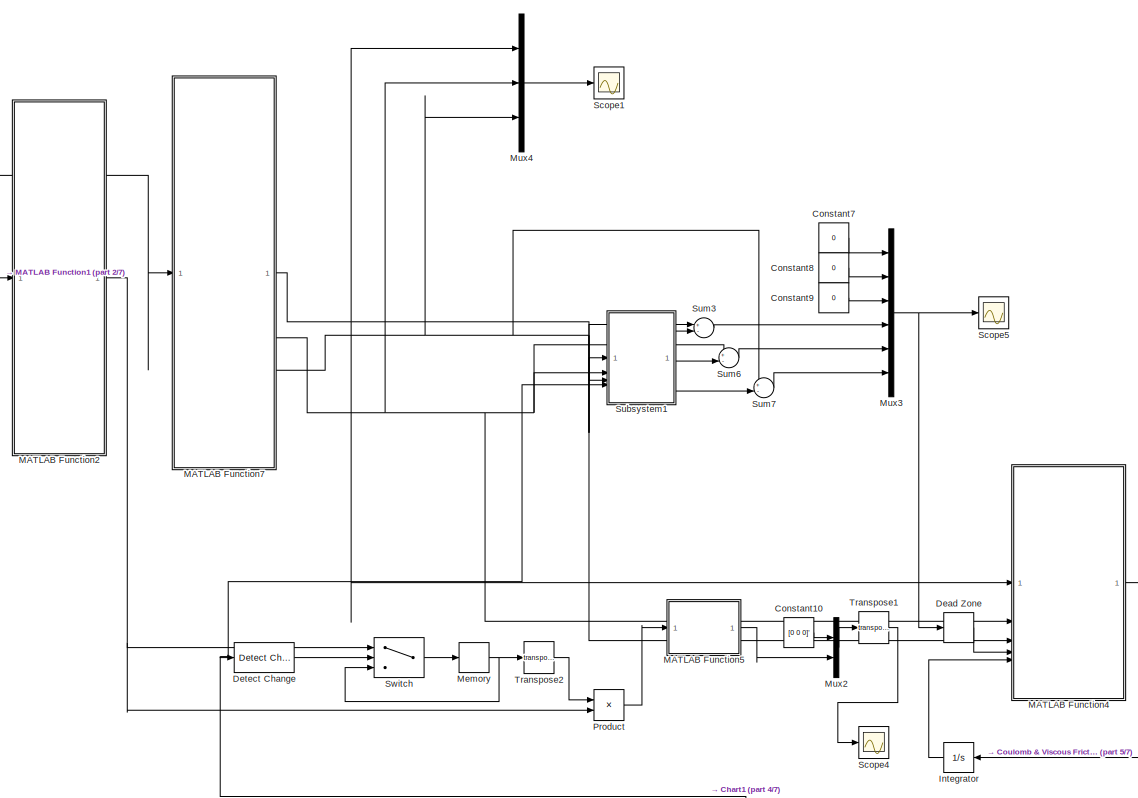
[diagram: root canvas - part 1/7, top right region]
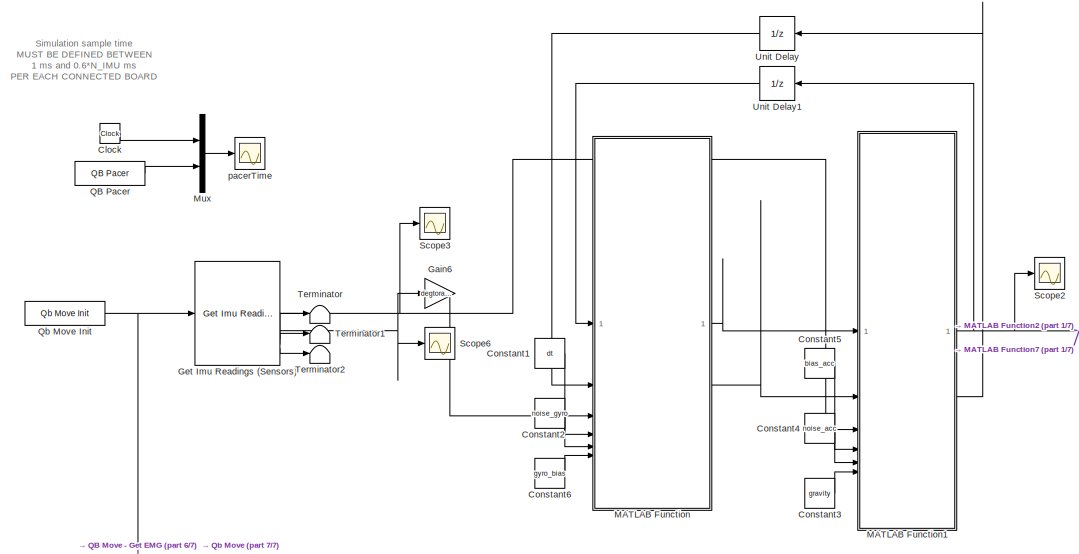
[diagram: root canvas - part 2/7, top center region]
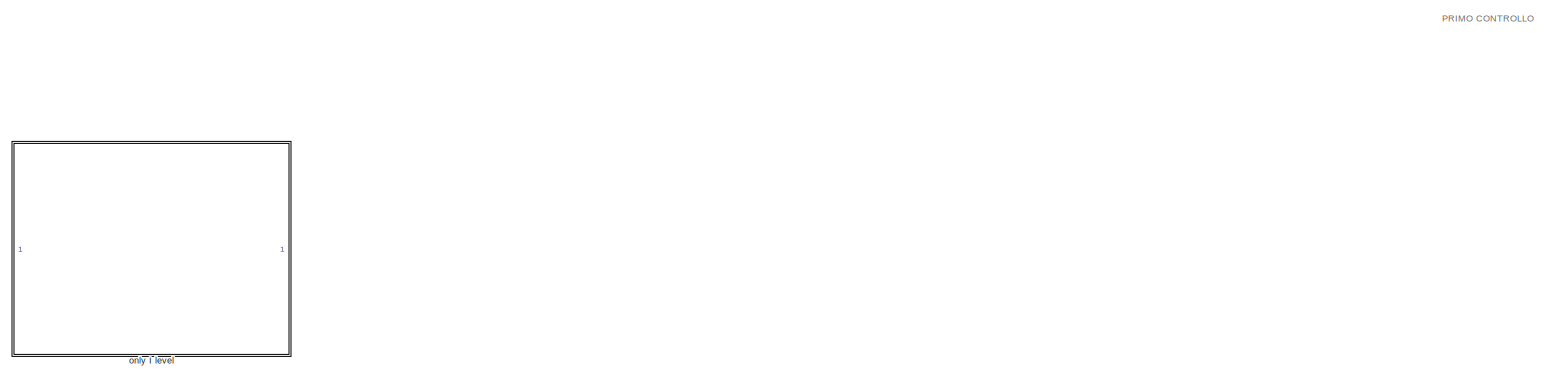
[diagram: root canvas - part 3/7, top left region]
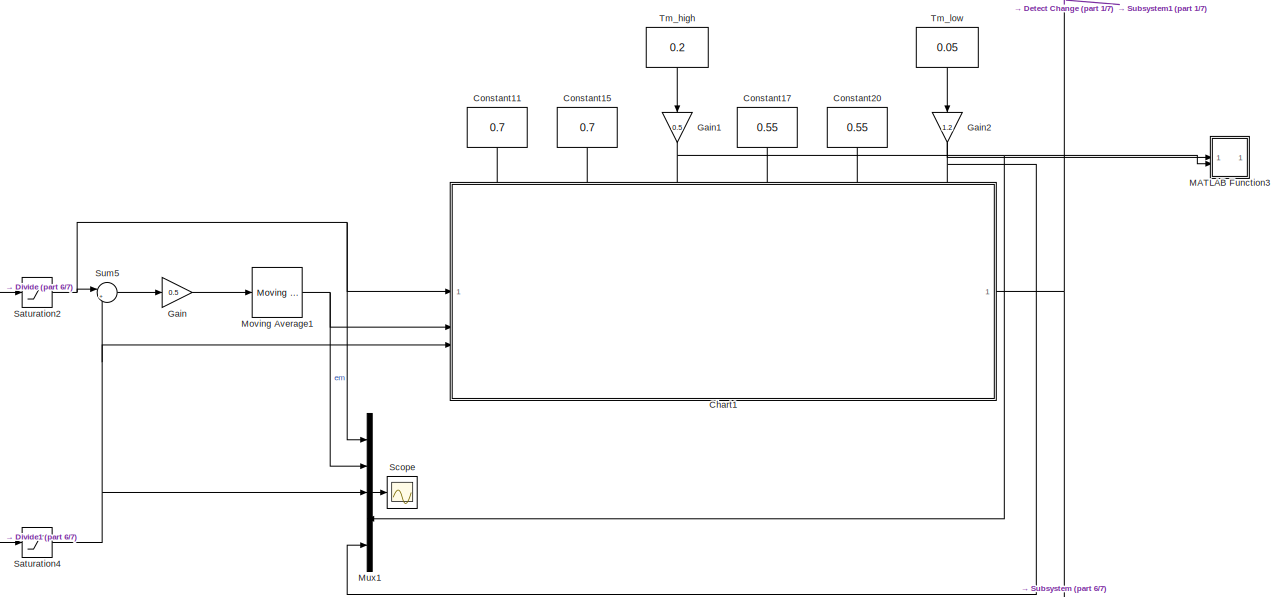
[diagram: root canvas - part 4/7, middle right region]
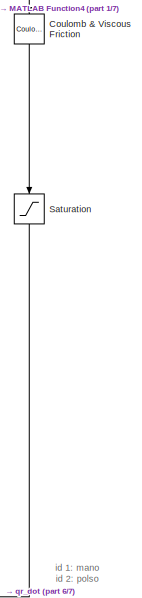
[diagram: root canvas - part 5/7, middle right region]
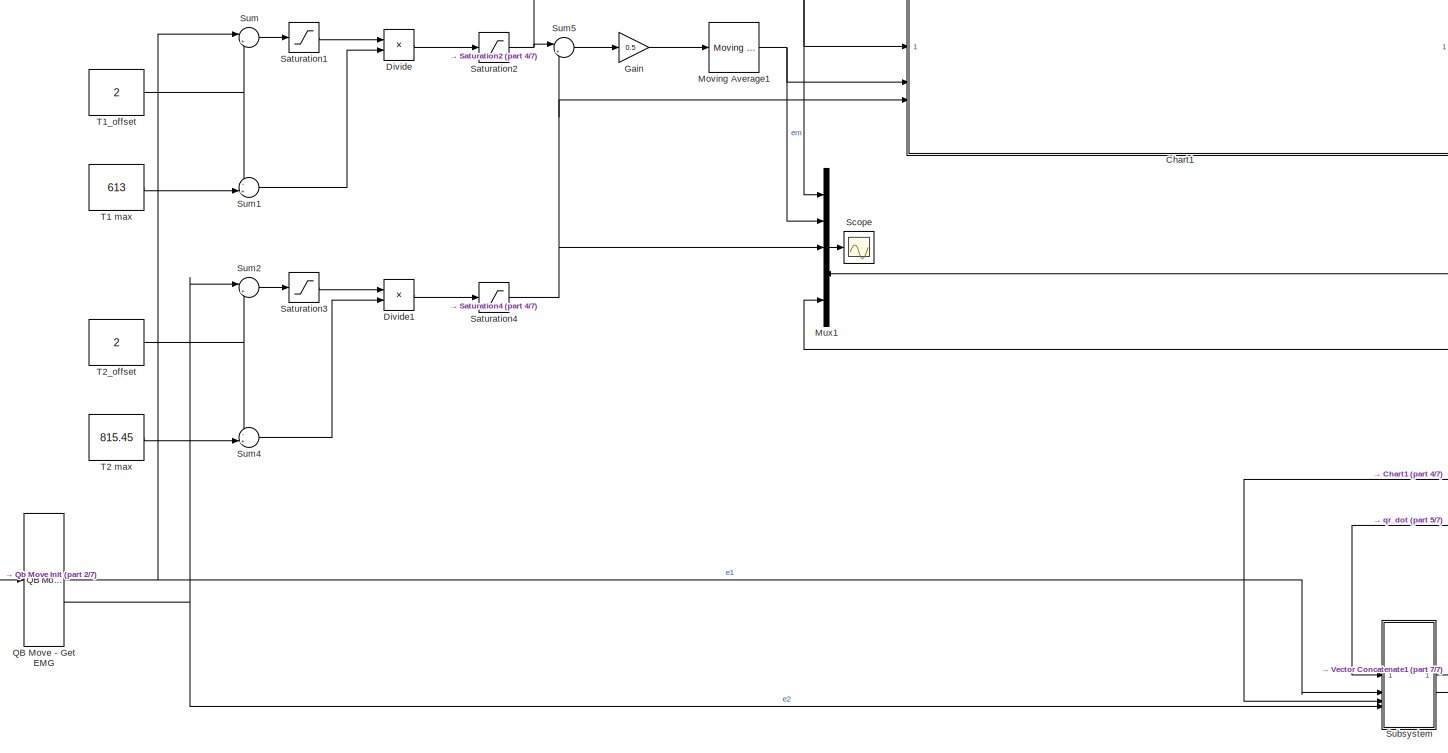
[diagram: root canvas - part 6/7, bottom right region]
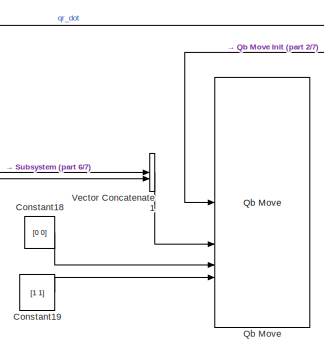
[diagram: root canvas - part 7/7, bottom right region]
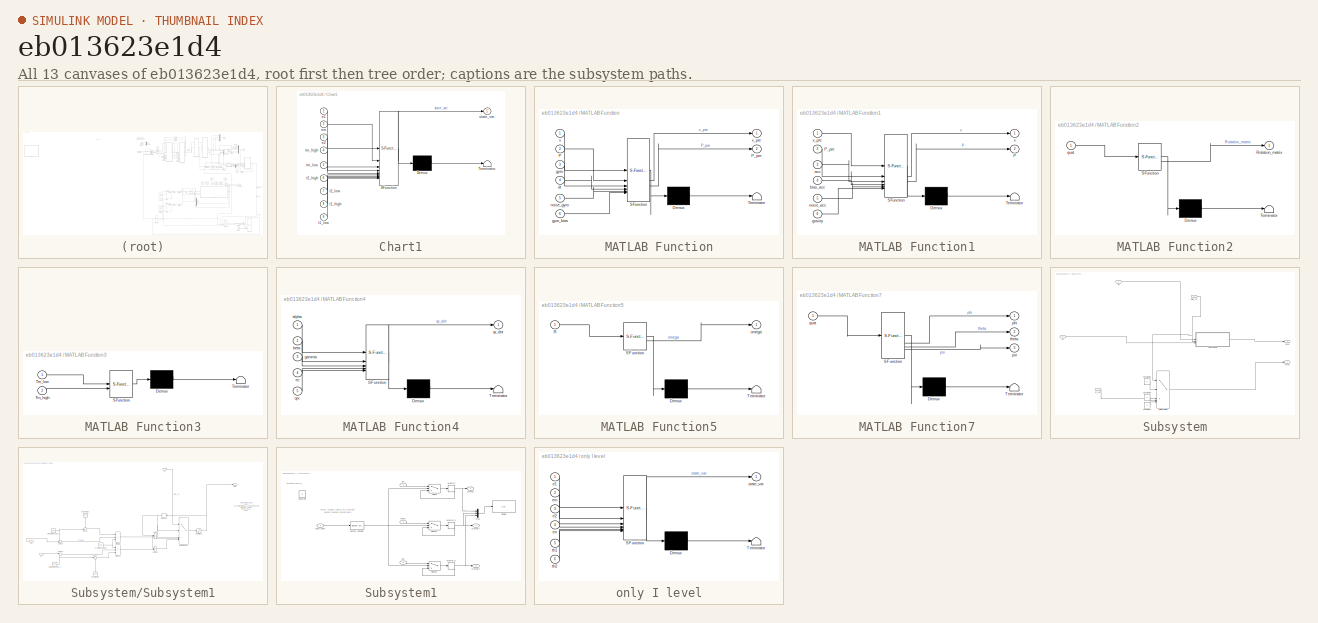
[diagram: thumbnail index - all 13 canvases of the model, root first then tree order]
MODEL slx_eb013623e1d4
KIND model
CONFIG AbsTol = auto
CONFIG EnableMultiTasking = off
CONFIG FixedStep = dt
CONFIG MaxStep = auto
CONFIG MinStep = auto
CONFIG RelTol = 1e-3
CONFIG SampleTimeConstraint = Unconstrained
CONFIG SolverName = ode1
CONFIG StartTime = 0.0
CONFIG StopTime = inf
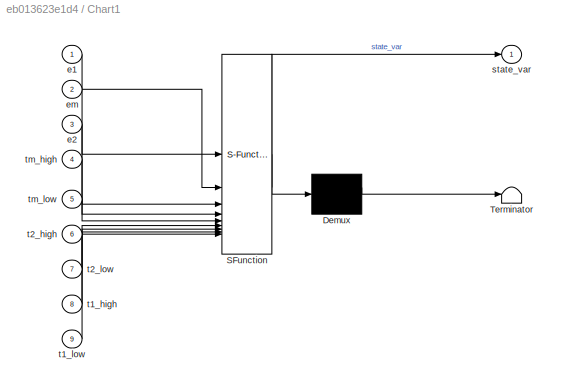
BLOCK [SubSystem] Chart1
  Commented = on
  ErrorFcn = Stateflow.Translate.translate
  PermitHierarchicalResolution = ExplicitOnly
  PortSchema = {"entries":[{"content":{"sides":[{"content":{"connectorIds":["In1","In2","In3"]},"type":"ConnectorPlacement.EquallySpacedRectSide","uuid":"4553bcbd-c641-47c7-8dbf-f79092e6ee81"},{"content":{"connectorIds":["Out1"],"side":"RIGHT"},"type":"ConnectorPlacement.EquallySpacedRectSide","uuid":"3da28b68-d93e-4f4c-9976-148e25354e99"},{"content":{"connectorIds":["In8","In6","In4","In9","In7","In5"],"side":"...<+287ch>
  SFBlockType = Chart
  TreatAsAtomicUnit = on
BLOCK [Demux] Chart1/ Demux 
  Outputs = 1
BLOCK [S-Function] Chart1/ SFunction 
  EnableBusSupport = on
  FunctionName = sf_sfun
  Parameters = dt
  PortCounts = [9 2]
  SFcnIsStateOwnerBlock = off
  SFunctionDeploymentMode = off
  Tag = Stateflow S-Function 4
BLOCK [Terminator] Chart1/ Terminator 
BLOCK [Inport] Chart1/e1
BLOCK [Inport] Chart1/e2
  Port = 3
BLOCK [Inport] Chart1/em
  Port = 2
BLOCK [Outport] Chart1/state_var
BLOCK [Inport] Chart1/t1_high
  Port = 8
BLOCK [Inport] Chart1/t1_low
  Port = 9
BLOCK [Inport] Chart1/t2_high
  Port = 6
BLOCK [Inport] Chart1/t2_low
  Port = 7
BLOCK [Inport] Chart1/tm_high
  Port = 4
BLOCK [Inport] Chart1/tm_low
  Port = 5
BLOCK [Clock] Clock
BLOCK [Constant] Constant1
  Value = dt
BLOCK [Constant] Constant10
  Value = [0 0 0]'
BLOCK [Constant] Constant11
  Commented = on
  NameLocation = left
  Value = 0.7
BLOCK [Constant] Constant15
  Commented = on
  NameLocation = left
  Value = 0.7
BLOCK [Constant] Constant17
  Commented = on
  NameLocation = left
  Value = 0.55
BLOCK [Constant] Constant18
  Commented = on
  Value = [0 0]
BLOCK [Constant] Constant19
  Commented = on
  Value = [1 1]
BLOCK [Constant] Constant2
  Value = noise_gyro
BLOCK [Constant] Constant20
  Commented = on
  NameLocation = left
  Value = 0.55
BLOCK [Constant] Constant3
  Value = gravity
BLOCK [Constant] Constant4
  Value = noise_acc
BLOCK [Constant] Constant5
  Value = bias_acc
BLOCK [Constant] Constant6
  Value = gyro_bias
BLOCK [Constant] Constant7
  Value = 0
BLOCK [Constant] Constant8
  Value = 0
BLOCK [Constant] Constant9
  Value = 0
BLOCK [Reference] Coulomb & Viscous Friction  REF=simulink/Discontinuities/Coulomb &
Viscous Friction
  Commented = on
  NameLocation = left
  SourceBlock = simulink/Discontinuities/Coulomb &\nViscous Friction
  SourceType = Coulombic and Viscous Friction
BLOCK [DeadZone] Dead Zone
  LowerValue = -0.15
  UpperValue = 0.15
BLOCK [Reference] Detect Change  REF=simulink/Logic and Bit
Operations/Detect
Change
  SourceBlock = simulink/Logic and Bit\nOperations/Detect\nChange
  SourceType = Detect Change
BLOCK [Product] Divide
  Commented = on
  Inputs = */
BLOCK [Product] Divide1
  Commented = on
  Inputs = */
BLOCK [Gain] Gain
  Commented = on
  Gain = 0.5
BLOCK [Gain] Gain1
  Commented = on
  Gain = 0.5
  NameLocation = left
BLOCK [Gain] Gain2
  Commented = on
  Gain = 1.2
  NameLocation = left
BLOCK [Gain] Gain6
  Gain = degtoradianti
BLOCK [Reference] Get Imu Readings (Sensors)  REF=CP_library/Get Imu Readings (Sensors)
  SourceBlock = CP_library/Get Imu Readings (Sensors)
  SourceProductName = Centro Piaggio Library
  SourceType = qb get imu reading
BLOCK [Integrator] Integrator
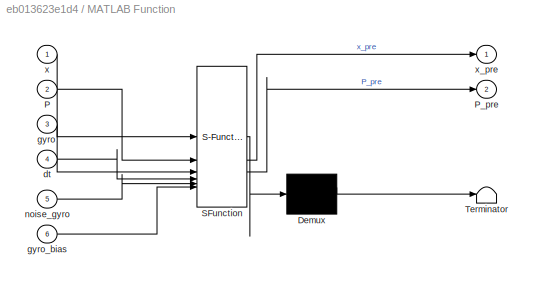
BLOCK [SubSystem] MATLAB Function
  ErrorFcn = Stateflow.Translate.translate
  PermitHierarchicalResolution = ExplicitOnly
  SFBlockType = MATLAB Function
  TreatAsAtomicUnit = on
BLOCK [Demux] MATLAB Function/ Demux 
  Outputs = 1
BLOCK [S-Function] MATLAB Function/ SFunction 
  EnableBusSupport = on
  FunctionName = sf_sfun
  PortCounts = [6 3]
  SFcnIsStateOwnerBlock = off
  SFunctionDeploymentMode = off
  Tag = Stateflow S-Function 2
BLOCK [Terminator] MATLAB Function/ Terminator 
BLOCK [Inport] MATLAB Function/P
  Port = 2
BLOCK [Outport] MATLAB Function/P_pre
  Port = 2
BLOCK [Inport] MATLAB Function/dt
  Port = 4
BLOCK [Inport] MATLAB Function/gyro
  Port = 3
BLOCK [Inport] MATLAB Function/gyro_bias
  Port = 6
BLOCK [Inport] MATLAB Function/noise_gyro
  Port = 5
BLOCK [Inport] MATLAB Function/x
BLOCK [Outport] MATLAB Function/x_pre
BLOCK [SubSystem] MATLAB Function1
  ErrorFcn = Stateflow.Translate.translate
  PermitHierarchicalResolution = ExplicitOnly
  SFBlockType = MATLAB Function
  TreatAsAtomicUnit = on
BLOCK [Demux] MATLAB Function1/ Demux 
  Outputs = 1
BLOCK [S-Function] MATLAB Function1/ SFunction 
  EnableBusSupport = on
  FunctionName = sf_sfun
  PortCounts = [6 3]
  SFcnIsStateOwnerBlock = off
  SFunctionDeploymentMode = off
  Tag = Stateflow S-Function 1
BLOCK [Terminator] MATLAB Function1/ Terminator 
BLOCK [Outport] MATLAB Function1/P
  Port = 2
BLOCK [Inport] MATLAB Function1/P_pre
  Port = 2
BLOCK [Inport] MATLAB Function1/acc
  Port = 3
BLOCK [Inport] MATLAB Function1/bias_acc
  Port = 4
BLOCK [Inport] MATLAB Function1/gravity
  Port = 6
BLOCK [Inport] MATLAB Function1/noise_acc
  Port = 5
BLOCK [Outport] MATLAB Function1/x
BLOCK [Inport] MATLAB Function1/x_pre
BLOCK [SubSystem] MATLAB Function2
  ErrorFcn = Stateflow.Translate.translate
  PermitHierarchicalResolution = ExplicitOnly
  SFBlockType = MATLAB Function
  TreatAsAtomicUnit = on
BLOCK [Demux] MATLAB Function2/ Demux 
  Outputs = 1
BLOCK [S-Function] MATLAB Function2/ SFunction 
  EnableBusSupport = on
  FunctionName = sf_sfun
  PortCounts = [1 2]
  SFcnIsStateOwnerBlock = off
  SFunctionDeploymentMode = off
  Tag = Stateflow S-Function 3
BLOCK [Terminator] MATLAB Function2/ Terminator 
BLOCK [Outport] MATLAB Function2/Rotation_matrix
BLOCK [Inport] MATLAB Function2/quat
BLOCK [SubSystem] MATLAB Function3
  Commented = on
  ErrorFcn = Stateflow.Translate.translate
  PermitHierarchicalResolution = ExplicitOnly
  SFBlockType = MATLAB Function
  TreatAsAtomicUnit = on
BLOCK [Demux] MATLAB Function3/ Demux 
  Outputs = 1
BLOCK [S-Function] MATLAB Function3/ SFunction 
  EnableBusSupport = on
  FunctionName = sf_sfun
  PortCounts = [2 1]
  SFcnIsStateOwnerBlock = off
  SFunctionDeploymentMode = off
  Tag = Stateflow S-Function 6
BLOCK [Terminator] MATLAB Function3/ Terminator 
BLOCK [Inport] MATLAB Function3/Tm_high
  Port = 2
BLOCK [Inport] MATLAB Function3/Tm_low
BLOCK [SubSystem] MATLAB Function4
  ErrorFcn = Stateflow.Translate.translate
  PermitHierarchicalResolution = ExplicitOnly
  SFBlockType = MATLAB Function
  TreatAsAtomicUnit = on
BLOCK [Demux] MATLAB Function4/ Demux 
  Outputs = 1
BLOCK [S-Function] MATLAB Function4/ SFunction 
  EnableBusSupport = on
  FunctionName = sf_sfun
  PortCounts = [5 2]
  SFcnIsStateOwnerBlock = off
  SFunctionDeploymentMode = off
  Tag = Stateflow S-Function 5
BLOCK [Terminator] MATLAB Function4/ Terminator 
BLOCK [Inport] MATLAB Function4/alpha
BLOCK [Inport] MATLAB Function4/beta
  Port = 2
BLOCK [Inport] MATLAB Function4/ec
  Port = 4
BLOCK [Inport] MATLAB Function4/gamma
  Port = 3
BLOCK [Outport] MATLAB Function4/qr_dot
BLOCK [Inport] MATLAB Function4/qrx
  Port = 5
BLOCK [SubSystem] MATLAB Function5
  ErrorFcn = Stateflow.Translate.translate
  PermitHierarchicalResolution = ExplicitOnly
  SFBlockType = MATLAB Function
  TreatAsAtomicUnit = on
BLOCK [Demux] MATLAB Function5/ Demux 
  Outputs = 1
BLOCK [S-Function] MATLAB Function5/ SFunction 
  EnableBusSupport = on
  FunctionName = sf_sfun
  PortCounts = [1 2]
  SFcnIsStateOwnerBlock = off
  SFunctionDeploymentMode = off
  Tag = Stateflow S-Function 9
BLOCK [Terminator] MATLAB Function5/ Terminator 
BLOCK [Inport] MATLAB Function5/R
BLOCK [Outport] MATLAB Function5/omega
BLOCK [SubSystem] MATLAB Function7
  ErrorFcn = Stateflow.Translate.translate
  PermitHierarchicalResolution = ExplicitOnly
  SFBlockType = MATLAB Function
  TreatAsAtomicUnit = on
BLOCK [Demux] MATLAB Function7/ Demux 
  Outputs = 1
BLOCK [S-Function] MATLAB Function7/ SFunction 
  EnableBusSupport = on
  FunctionName = sf_sfun
  PortCounts = [1 4]
  SFcnIsStateOwnerBlock = off
  SFunctionDeploymentMode = off
  Tag = Stateflow S-Function 15
BLOCK [Terminator] MATLAB Function7/ Terminator 
BLOCK [Outport] MATLAB Function7/phi
BLOCK [Outport] MATLAB Function7/psi
  Port = 3
BLOCK [Inport] MATLAB Function7/quat
BLOCK [Outport] MATLAB Function7/theta
  Port = 2
BLOCK [Memory] Memory
  InitialCondition = eye(3)
BLOCK [Reference] Moving Average1  REF=dspstat3/Moving
Average
  Commented = on
  SourceBlock = dspstat3/Moving\nAverage
  SourceType = dsp.simulink.MovingAverage
BLOCK [Mux] Mux
  DisplayOption = bar
  Inputs = 2
BLOCK [Mux] Mux1
  Commented = on
  DisplayOption = bar
  Inputs = 5
BLOCK [Mux] Mux2
  DisplayOption = bar
  Inputs = 2
BLOCK [Mux] Mux3
  DisplayOption = bar
  Inputs = 6
BLOCK [Mux] Mux4
  DisplayOption = bar
  Inputs = 3
BLOCK [Product] Product
  Multiplication = Matrix(*)
BLOCK [Reference] QB Move - Get EMG  REF=qbmove_library/QB Move - Get EMG
  Commented = on
  SourceBlock = qbmove_library/QB Move - Get EMG
  SourceProductName = Qb Move Library
  SourceType = qb move
BLOCK [Reference] QB Pacer  REF=QB_pacer_lib/QB Pacer
  SourceBlock = QB_pacer_lib/QB Pacer
  SourceProductName = QB Pacer
  SourceType = RealTime_Pacer
BLOCK [Reference] Qb Move  REF=qbmove_library/Qb Move
  Commented = on
  LibrarySourceBlock = qbmove_library/qbmove
  SourceBlock = qbmove_library/Qb Move
  SourceProductName = Qb Move Library
  SourceType = qb move
BLOCK [Reference] Qb Move Init  REF=qbmove_library/Qb Move Init
  NameLocation = top
  SourceBlock = qbmove_library/Qb Move Init
  SourceProductName = Qb Move Library
  SourceType = qb Init - ISS
BLOCK [Saturate] Saturation
  Commented = on
  LowerLimit = -100
  NameLocation = left
  UpperLimit = 100
BLOCK [Saturate] Saturation1
  Commented = on
  LowerLimit = 0
  UpperLimit = 1024
BLOCK [Saturate] Saturation2
  Commented = on
  LowerLimit = 0
  UpperLimit = 1
BLOCK [Saturate] Saturation3
  Commented = on
  LowerLimit = 0
  UpperLimit = 1024
BLOCK [Saturate] Saturation4
  Commented = on
  LowerLimit = 0
  UpperLimit = 1
BLOCK [Scope] Scope
  Commented = on
  Floating = off
  NumInputPorts = 1
  ScopeSpecificationString = Simulink.scopes.TimeScopeBlockCfg('CurrentConfiguration', extmgr.ConfigurationSet(extmgr.Configuration('Core','General UI',true),extmgr.Configuration('Core','Source UI',true),extmgr.Configuration('Sources','WiredSimulink',true,'DataLoggingVariableName','ScopeData2'),extmgr.Configuration('Visuals','Time Domain',true,'SerializedDisplays',{struct('MinYLimReal','-0.0125','MaxYLimReal','0.1125','YLabel...<+1428ch>
BLOCK [Scope] Scope1
  Floating = off
  NumInputPorts = 1
  ScopeSpecificationString = Simulink.scopes.TimeScopeBlockCfg('CurrentConfiguration', extmgr.ConfigurationSet(extmgr.Configuration('Core','General UI',true),extmgr.Configuration('Core','Source UI',true),extmgr.Configuration('Sources','WiredSimulink',true,'DataLoggingVariableName','ScopeData1'),extmgr.Configuration('Visuals','Time Domain',true,'SerializedDisplays',{struct('MinYLimReal','-0.70785','MaxYLimReal','0.47995','YLab...<+1522ch>
BLOCK [Scope] Scope2
  Floating = off
  NumInputPorts = 1
  ScopeSpecificationString = Simulink.scopes.TimeScopeBlockCfg('CurrentConfiguration', extmgr.ConfigurationSet(extmgr.Configuration('Core','General UI',true),extmgr.Configuration('Core','Source UI',true),extmgr.Configuration('Sources','WiredSimulink',true,'DataLoggingVariableName','ScopeData1'),extmgr.Configuration('Visuals','Time Domain',true,'SerializedDisplays',{struct('MinYLimReal','-0.58123','MaxYLimReal','1.17569','YLab...<+1475ch>
BLOCK [Scope] Scope3
  Floating = off
  NumInputPorts = 1
  ScopeSpecificationString = Simulink.scopes.TimeScopeBlockCfg('CurrentConfiguration', extmgr.ConfigurationSet(extmgr.Configuration('Core','General UI',true),extmgr.Configuration('Core','Source UI',true),extmgr.Configuration('Sources','WiredSimulink',true,'DataLoggingVariableName','ScopeData1'),extmgr.Configuration('Visuals','Time Domain',true,'SerializedDisplays',{struct('MinYLimReal','-15.75797','MaxYLimReal','23.50643','YL...<+1488ch>
BLOCK [Scope] Scope4
  Floating = off
  NumInputPorts = 1
  ScopeSpecificationString = Simulink.scopes.TimeScopeBlockCfg('CurrentConfiguration', extmgr.ConfigurationSet(extmgr.Configuration('Core','General UI',true),extmgr.Configuration('Core','Source UI',true),extmgr.Configuration('Sources','WiredSimulink',true,'DataLoggingVariableName','ScopeData2'),extmgr.Configuration('Visuals','Time Domain',true,'SerializedDisplays',{struct('MinYLimReal','-1.0161','MaxYLimReal','0.74272','YLabe...<+1611ch>
BLOCK [Scope] Scope5
  Floating = off
  NumInputPorts = 1
  ScopeSpecificationString = Simulink.scopes.TimeScopeBlockCfg('CurrentConfiguration', extmgr.ConfigurationSet(extmgr.Configuration('Core','General UI',true),extmgr.Configuration('Core','Source UI',true),extmgr.Configuration('Sources','WiredSimulink',true,'DataLoggingVariableName','ScopeData2'),extmgr.Configuration('Visuals','Time Domain',true,'SerializedDisplays',{struct('MinYLimReal','-2.06645','MaxYLimReal','1.79113','YLab...<+1582ch>
BLOCK [Scope] Scope6
  Floating = off
  NumInputPorts = 1
  ScopeSpecificationString = Simulink.scopes.TimeScopeBlockCfg('CurrentConfiguration', extmgr.ConfigurationSet(extmgr.Configuration('Core','General UI',true),extmgr.Configuration('Core','Source UI',true),extmgr.Configuration('Sources','WiredSimulink',true,'DataLoggingVariableName','ScopeData2'),extmgr.Configuration('Visuals','Time Domain',true,'SerializedDisplays',{struct('MinYLimReal','-65.10361','MaxYLimReal','106.18151','Y...<+1492ch>
BLOCK [SubSystem] Subsystem
  Commented = on
BLOCK [Constant] Subsystem/Constant15
  Value = 0
BLOCK [Constant] Subsystem/Constant16
  Value = 0
BLOCK [Constant] Subsystem/Constant17
  Value = 0
BLOCK [Outport] Subsystem/Hand
BLOCK [MultiPortSwitch] Subsystem/Multiport Switch
  DataPortOrder = Zero-based contiguous
  InputSameDT = off
  Inputs = 4
  SaturateOnIntegerOverflow = off
  zeroidx = on
BLOCK [SubSystem] Subsystem/Subsystem1
  ShowPortLabels = SignalName
BLOCK [Constant] Subsystem/Subsystem1/2*EMG_speed1
  Value = 250
BLOCK [Constant] Subsystem/Subsystem1/Constant18
  NameLocation = right
  Value = 1024
BLOCK [Constant] Subsystem/Subsystem1/Constant22
  NameLocation = left
  Value = 1024
BLOCK [Product] Subsystem/Subsystem1/Divide2
  Inputs = /**
BLOCK [Product] Subsystem/Subsystem1/Divide3
  Inputs = **/
BLOCK [Constant] Subsystem/Subsystem1/EMG_threshold_3
  Value = 200
BLOCK [Constant] Subsystem/Subsystem1/EMG_threshold_4
  Value = 200
BLOCK [Inport] Subsystem/Subsystem1/In2
  Port = 2
BLOCK [Memory] Subsystem/Subsystem1/Memory1
BLOCK [MultiPortSwitch] Subsystem/Subsystem1/Multiport Switch1
  DataPortOrder = Zero-based contiguous
  InputSameDT = off
  Inputs = 4
  SaturateOnIntegerOverflow = off
  zeroidx = on
BLOCK [Outport] Subsystem/Subsystem1/Out1
BLOCK [Saturate] Subsystem/Subsystem1/Saturation1
  LowerLimit = 0
  UpperLimit = 17500
BLOCK [Sum] Subsystem/Subsystem1/Sum10
  Inputs = -+|
BLOCK [Sum] Subsystem/Subsystem1/Sum11
  Inputs = +-|
BLOCK [Sum] Subsystem/Subsystem1/Sum12
  IconShape = rectangular
  Inputs = +-
BLOCK [Sum] Subsystem/Subsystem1/Sum13
  Inputs = |+-
BLOCK [Sum] Subsystem/Subsystem1/Sum14
  Inputs = |-+
BLOCK [Sum] Subsystem/Subsystem1/Sum9
  IconShape = rectangular
BLOCK [Inport] Subsystem/Subsystem1/e1
BLOCK [Inport] Subsystem/Subsystem1/e2
  Port = 3
BLOCK [Outport] Subsystem/Wrist
  Port = 2
BLOCK [Inport] Subsystem/e1
  Port = 2
BLOCK [Inport] Subsystem/e2
  Port = 4
BLOCK [Inport] Subsystem/qr_dot
BLOCK [Inport] Subsystem/state_var
  Port = 3
BLOCK [SubSystem] Subsystem1
BLOCK [Constant] Subsystem1/Constant
  Commented = on
  Value = 0
BLOCK [Reference] Subsystem1/Detect Change  REF=simulink/Logic and Bit
Operations/Detect
Change
  SourceBlock = simulink/Logic and Bit\nOperations/Detect\nChange
  SourceType = Detect Change
BLOCK [Display] Subsystem1/Display
  Decimation = 1
BLOCK [Memory] Subsystem1/Memory
BLOCK [Memory] Subsystem1/Memory1
BLOCK [Memory] Subsystem1/Memory2
BLOCK [Mux] Subsystem1/Mux
  DisplayOption = bar
  Inputs = 3
BLOCK [Outport] Subsystem1/Output
  IconDisplay = Signal name
BLOCK [Outport] Subsystem1/Output1
  Port = 2
BLOCK [Outport] Subsystem1/Output2
  Port = 3
BLOCK [Switch] Subsystem1/Switch
  Criteria = u2 > Threshold
  InputSameDT = off
  SaturateOnIntegerOverflow = off
BLOCK [Switch] Subsystem1/Switch1
  Criteria = u2 > Threshold
  InputSameDT = off
  SaturateOnIntegerOverflow = off
BLOCK [Switch] Subsystem1/Switch2
  Criteria = u2 > Threshold
  InputSameDT = off
  SaturateOnIntegerOverflow = off
BLOCK [Inport] Subsystem1/phi
BLOCK [Inport] Subsystem1/psi
  Port = 3
BLOCK [Inport] Subsystem1/reset pose
  Port = 4
BLOCK [Inport] Subsystem1/theta
  Port = 2
BLOCK [Sum] Sum
  Commented = on
  Inputs = |+-
BLOCK [Sum] Sum1
  Commented = on
  Inputs = -+|
BLOCK [Sum] Sum2
  Commented = on
  Inputs = |+-
BLOCK [Sum] Sum3
  Inputs = +-|
BLOCK [Sum] Sum4
  Commented = on
  Inputs = -+|
BLOCK [Sum] Sum5
  Commented = on
  Inputs = |++
BLOCK [Sum] Sum6
  Inputs = +-|
BLOCK [Sum] Sum7
  Inputs = +-|
BLOCK [Switch] Switch
  Criteria = u2 > Threshold
  InputSameDT = off
  SaturateOnIntegerOverflow = off
BLOCK [Constant] T1 max
  Commented = on
  Value = 613
BLOCK [Constant] T1_offset
  Commented = on
  NameLocation = top
  Value = 2
BLOCK [Constant] T2 max
  Commented = on
  Value = 815.45
BLOCK [Constant] T2_offset
  Commented = on
  NameLocation = top
  Value = 2
BLOCK [Terminator] Terminator
BLOCK [Terminator] Terminator1
BLOCK [Terminator] Terminator2
BLOCK [Constant] Tm_high
  Commented = on
  NameLocation = right
  Value = 0.2
BLOCK [Constant] Tm_low
  Commented = on
  NameLocation = right
  Value = 0.05
BLOCK [Math] Transpose1
  Operator = transpose
BLOCK [Math] Transpose2
  Operator = transpose
BLOCK [UnitDelay] Unit Delay
  HasFrameUpgradeWarning = on
  InitialCondition = P_init
  SampleTime = -1
BLOCK [UnitDelay] Unit Delay1
  HasFrameUpgradeWarning = on
  InitialCondition = q_init
  SampleTime = -1
BLOCK [Concatenate] Vector Concatenate1
  Commented = on
BLOCK [SubSystem] only I level
  Commented = on
  ErrorFcn = Stateflow.Translate.translate
  PermitHierarchicalResolution = ExplicitOnly
  SFBlockType = Chart
  TreatAsAtomicUnit = on
BLOCK [Demux] only I level/ Demux 
  Outputs = 1
BLOCK [S-Function] only I level/ SFunction 
  EnableBusSupport = on
  FunctionName = sf_sfun
  PortCounts = [6 2]
  SFcnIsStateOwnerBlock = off
  SFunctionDeploymentMode = off
  Tag = Stateflow S-Function 7
BLOCK [Terminator] only I level/ Terminator 
BLOCK [Inport] only I level/e1
BLOCK [Inport] only I level/e2
  Port = 3
BLOCK [Inport] only I level/em
  Port = 2
BLOCK [Outport] only I level/state_var
BLOCK [Inport] only I level/th1
  Port = 5
BLOCK [Inport] only I level/th2
  Port = 6
BLOCK [Inport] only I level/tm
  Port = 4
BLOCK [Scope] pacerTime
  Floating = off
  NumInputPorts = 1
  ScopeSpecificationString = Simulink.scopes.TimeScopeBlockCfg('CurrentConfiguration', extmgr.ConfigurationSet(extmgr.Configuration('Core','General UI',true),extmgr.Configuration('Core','Source UI',true),extmgr.Configuration('Sources','WiredSimulink',true,'DataLoggingSaveFormat','Array','DataLoggingDecimation','1','DataLoggingDecimateData',true),extmgr.Configuration('Visuals','Time Domain',true,'SerializedDisplays',{struct('M...<+1503ch>
ANNOTATION (root): id 1: mano id 2: polso
ANNOTATION (root): PRIMO CONTROLLO
ANNOTATION (root): Simulation sample time MUST BE DEFINED BETWEEN 1 ms and 0.6*N_IMU ms PER EACH CONNECTED BOARD
ANNOTATION Subsystem/Subsystem1: switch (current_emg) { case 0: // Look for the first EMG passing the threshold if (err_emg_1 > 0) { current_emg = 1; break; } if (err_emg_2 > 0) { current_emg = 2; break; } break; case 1: // EMG 1 is first if (err_emg_1 < 0) { current_emg = 0; break; } g_ref.pos[0] += (err_emg_1 * g_mem.emg_speed * 2) / (1024 - c_mem.emg_threshold[0]); break; case 2: // EMG 2 is first if (err_emg_2 < 0) { current_...<+127ch>
ANNOTATION Subsystem1: activation button
ANNOTATION Subsystem1: detect change: il blocco dà un impulso quando il segnale cambia valore
NET Chart1:1 -> Detect Change:1, Subsystem1:4, Subsystem:3
LINE Clock:1 -> Mux:1
LINE Constant10:1 -> Mux2:1
LINE Constant11:1 -> Chart1:8
LINE Constant15:1 -> Chart1:6
LINE Constant17:1 -> Chart1:9
LINE Constant18:1 -> Qb Move:3
LINE Constant19:1 -> Qb Move:4
LINE Constant1:1 -> MATLAB Function:4
LINE Constant20:1 -> Chart1:7
LINE Constant2:1 -> MATLAB Function:5
LINE Constant3:1 -> MATLAB Function1:6
LINE Constant4:1 -> MATLAB Function1:5
LINE Constant5:1 -> MATLAB Function1:4
LINE Constant6:1 -> MATLAB Function:6
LINE Constant7:1 -> Mux3:1
LINE Constant8:1 -> Mux3:2
LINE Constant9:1 -> Mux3:3
LINE Coulomb & Viscous Friction:1 -> Saturation:1
LINE Dead Zone:1 -> MATLAB Function4:4
LINE Detect Change:1 -> Switch:2
LINE Divide1:1 -> Saturation4:1
LINE Divide:1 -> Saturation2:1
NET Gain1:1 -> Chart1:4, MATLAB Function3:2, Mux1:4
NET Gain2:1 -> Chart1:5, MATLAB Function3:1, Mux1:5
LINE Gain6:1 -> MATLAB Function:3
LINE Gain:1 -> Moving Average1:1
NET Get Imu Readings (Sensors):1 -> MATLAB Function1:3, Scope3:1
NET Get Imu Readings (Sensors):2 -> Gain6:1, Scope6:1
LINE Get Imu Readings (Sensors):3 -> Terminator:1
LINE Get Imu Readings (Sensors):4 -> Terminator1:1
LINE Get Imu Readings (Sensors):5 -> Terminator2:1
LINE Integrator:1 -> MATLAB Function4:5
NET MATLAB Function1:1 -> MATLAB Function2:1, MATLAB Function7:1, Scope2:1, Unit Delay1:1
LINE MATLAB Function1:2 -> Unit Delay:1
NET MATLAB Function2:1 -> Product:2, Switch:1
NET MATLAB Function4:1 -> Coulomb & Viscous Friction:1, Integrator:1
LINE MATLAB Function5:1 -> Mux2:2
NET MATLAB Function7:1 -> MATLAB Function4:1, Mux4:1, Subsystem1:1, Sum3:1
NET MATLAB Function7:2 -> MATLAB Function4:2, Mux4:2, Subsystem1:2, Sum6:1
NET MATLAB Function7:3 -> MATLAB Function4:3, Mux4:3, Subsystem1:3, Sum7:1
LINE MATLAB Function:1 -> MATLAB Function1:1
LINE MATLAB Function:2 -> MATLAB Function1:2
NET Memory:1 -> Switch:3, Transpose2:1
NET Moving Average1:1 -> Chart1:2, Mux1:2
LINE Mux1:1 -> Scope:1
LINE Mux2:1 -> Transpose1:1
NET Mux3:1 -> Dead Zone:1, Scope5:1
LINE Mux4:1 -> Scope1:1
LINE Mux:1 -> pacerTime:1
LINE Product:1 -> MATLAB Function5:1
NET QB Move - Get EMG:1 -> Subsystem:2, Sum:1
NET QB Move - Get EMG:2 -> Subsystem:4, Sum2:1
LINE QB Pacer:1 -> Mux:2
NET Qb Move Init:1 -> Get Imu Readings (Sensors):1, QB Move - Get EMG:1, Qb Move:1
LINE Saturation1:1 -> Divide:1
NET Saturation2:1 -> Chart1:1, Mux1:1, Sum5:1
LINE Saturation3:1 -> Divide1:1
NET Saturation4:1 -> Chart1:3, Mux1:3, Sum5:2
LINE Saturation:1 -> Subsystem:1
LINE Subsystem/Constant15:1 -> Subsystem/Multiport Switch:2
LINE Subsystem/Constant16:1 -> Subsystem/Multiport Switch:4
LINE Subsystem/Constant17:1 -> Subsystem/Multiport Switch:5
LINE Subsystem/Multiport Switch:1 -> Subsystem/Wrist:1
NET Subsystem/Subsystem1/2*EMG_speed1:1 -> Subsystem/Subsystem1/Divide2:3, Subsystem/Subsystem1/Divide3:1
LINE Subsystem/Subsystem1/Constant18:1 -> Subsystem/Subsystem1/Sum14:2
LINE Subsystem/Subsystem1/Constant22:1 -> Subsystem/Subsystem1/Sum11:1
LINE Subsystem/Subsystem1/Divide2:1 -> Subsystem/Subsystem1/Sum9:2
LINE Subsystem/Subsystem1/Divide3:1 -> Subsystem/Subsystem1/Sum12:2
NET Subsystem/Subsystem1/EMG_threshold_3:1 -> Subsystem/Subsystem1/Sum10:1, Subsystem/Subsystem1/Sum11:2
NET Subsystem/Subsystem1/EMG_threshold_4:1 -> Subsystem/Subsystem1/Sum13:2, Subsystem/Subsystem1/Sum14:1
LINE Subsystem/Subsystem1/In2:1 -> Subsystem/Subsystem1/Multiport Switch1:1
NET Subsystem/Subsystem1/Memory1:1 -> Subsystem/Subsystem1/Multiport Switch1:2, Subsystem/Subsystem1/Multiport Switch1:3, Subsystem/Subsystem1/Sum12:1, Subsystem/Subsystem1/Sum9:1
LINE Subsystem/Subsystem1/Multiport Switch1:1 -> Subsystem/Subsystem1/Saturation1:1
NET Subsystem/Subsystem1/Saturation1:1 -> Subsystem/Subsystem1/Memory1:1, Subsystem/Subsystem1/Out1:1
LINE Subsystem/Subsystem1/Sum10:1 -> Subsystem/Subsystem1/Divide2:2
LINE Subsystem/Subsystem1/Sum11:1 -> Subsystem/Subsystem1/Divide2:1
LINE Subsystem/Subsystem1/Sum12:1 -> Subsystem/Subsystem1/Multiport Switch1:5
LINE Subsystem/Subsystem1/Sum13:1 -> Subsystem/Subsystem1/Divide3:2
LINE Subsystem/Subsystem1/Sum14:1 -> Subsystem/Subsystem1/Divide3:3
LINE Subsystem/Subsystem1/Sum9:1 -> Subsystem/Subsystem1/Multiport Switch1:4
LINE Subsystem/Subsystem1/e1:1 -> Subsystem/Subsystem1/Sum10:2
LINE Subsystem/Subsystem1/e2:1 -> Subsystem/Subsystem1/Sum13:1
LINE Subsystem/Subsystem1:1 -> Subsystem/Hand:1
LINE Subsystem/e1:1 -> Subsystem/Subsystem1:1
LINE Subsystem/e2:1 -> Subsystem/Subsystem1:3
LINE Subsystem/qr_dot:1 -> Subsystem/Multiport Switch:3
NET Subsystem/state_var:1 -> Subsystem/Multiport Switch:1, Subsystem/Subsystem1:2
NET Subsystem1/Detect Change:1 -> Subsystem1/Switch1:2, Subsystem1/Switch2:2, Subsystem1/Switch:2
NET Subsystem1/Memory1:1 -> Subsystem1/Mux:2, Subsystem1/Output1:1, Subsystem1/Switch1:3
NET Subsystem1/Memory2:1 -> Subsystem1/Mux:3, Subsystem1/Output2:1, Subsystem1/Switch2:3
NET Subsystem1/Memory:1 -> Subsystem1/Mux:1, Subsystem1/Output:1, Subsystem1/Switch:3
LINE Subsystem1/Mux:1 -> Subsystem1/Display:1
LINE Subsystem1/Switch1:1 -> Subsystem1/Memory1:1
LINE Subsystem1/Switch2:1 -> Subsystem1/Memory2:1
LINE Subsystem1/Switch:1 -> Subsystem1/Memory:1
LINE Subsystem1/phi:1 -> Subsystem1/Switch:1
LINE Subsystem1/psi:1 -> Subsystem1/Switch2:1
LINE Subsystem1/reset pose:1 -> Subsystem1/Detect Change:1
LINE Subsystem1/theta:1 -> Subsystem1/Switch1:1
LINE Subsystem1:1 -> Sum3:2
LINE Subsystem1:2 -> Sum6:2
LINE Subsystem1:3 -> Sum7:2
LINE Subsystem:1 -> Vector Concatenate1:1
LINE Subsystem:2 -> Vector Concatenate1:2
LINE Sum1:1 -> Divide:2
LINE Sum2:1 -> Saturation3:1
LINE Sum3:1 -> Mux3:4
LINE Sum4:1 -> Divide1:2
LINE Sum5:1 -> Gain:1
LINE Sum6:1 -> Mux3:5
LINE Sum7:1 -> Mux3:6
LINE Sum:1 -> Saturation1:1
LINE Switch:1 -> Memory:1
LINE T1 max:1 -> Sum1:2
NET T1_offset:1 -> Sum1:1, Sum:2
LINE T2 max:1 -> Sum4:2
NET T2_offset:1 -> Sum2:2, Sum4:1
LINE Tm_high:1 -> Gain1:1
LINE Tm_low:1 -> Gain2:1
LINE Transpose1:1 -> Scope4:1
LINE Transpose2:1 -> Product:1
LINE Unit Delay1:1 -> MATLAB Function:1
LINE Unit Delay:1 -> MATLAB Function:2
LINE Vector Concatenate1:1 -> Qb Move:2
note: NET lines group one-source signal fan-out (src -> all destinations, sorted); 1:1 wires keep LINE
CHART MATLAB Function4 states=1 transitions=1
  STATE_LABEL 'eML_blk_kernel()'
  STATE_LABEL "SCRIPT:\n% function qr_dot = wrist_control(ec, Jre , Jhc , Jhe , kc)\n% ec = ec'; %deve essere 6x1\n% Jre_i = pinv(Jre);\n% Jhe_i = pinv(Jhe);\n% qr_dot = -Jre_i*(pinv(Jhc*Jhe_i))*kc*ec ;\n% \n% end\n\nfunction qr_dot = wrist_control(alpha, beta, gamma, ec, qrx )\n\nec = ec';\n% alpha = ec(4); %phi\n% beta = ec(5);  %theta\n% gamma = ec(6); %psi\nkc = 100 ;\nl1=0.3; %[m]\nlw = 0.1; %[m]\nRxyz =[cos(beta)*cos(gamma)...<+913ch>"
CHART MATLAB Function3 states=1 transitions=1
  STATE_LABEL 'eML_blk_kernel()'
  STATE_LABEL "SCRIPT:\nfunction check_errors(Tm_low,Tm_high)\n\nif Tm_low >Tm_high\n    error('The provided thresholds cannot represent a real situation');\nend\nend\n"
CHART only I level states=8 transitions=7
  STATE_LABEL '<!DOCTYPE HTML PUBLIC "-//W3C//DTD HTML 4.0//EN" "http://www.w3.org/TR/REC-html40/strict.dtd">\n<html><head><meta name="qrichtext" content="1" /><style type="text/css">\np, li { white-space: pre-wrap; }\n</style></head><body align="left" style=" font-family:\'Helvetica\'; font-size:12px; font-weight:400; font-style:normal;">\n<p align="left" style=" margin-top:0px; margin-bottom:0px; margin-left:0px; ma...<+140ch>'
  STATE_LABEL '<!DOCTYPE HTML PUBLIC "-//W3C//DTD HTML 4.0//EN" "http://www.w3.org/TR/REC-html40/strict.dtd">\n<html><head><meta name="qrichtext" content="1" /><style type="text/css">\np, li { white-space: pre-wrap; }\n</style></head><body align="left" style=" font-family:\'Helvetica\'; font-size:12px; font-weight:400; font-style:normal;">\n<p align="left" style=" margin-top:0px; margin-bottom:0px; margin-left:0px; ma...<+144ch>'
  STATE_LABEL 'state0\nentry: state_var = 0;\n'
  STATE_LABEL 'state1\nentry: state_var=1;\n'
  STATE_LABEL '<!DOCTYPE HTML PUBLIC "-//W3C//DTD HTML 4.0//EN" "http://www.w3.org/TR/REC-html40/strict.dtd">\n<html><head><meta name="qrichtext" content="1" /><style type="text/css">\np, li { white-space: pre-wrap; }\n</style></head><body align="left" style=" font-family:\'Helvetica\'; font-size:12px; font-weight:400; font-style:normal;">\n<p align="left" style=" margin-top:0px; margin-bottom:0px; margin-left:0px; ma...<+147ch>'  <repeated x4 — deduplicated; at blocks: only I level, Chart1>
  STATE_LABEL 'state2\nentry: state_var=2;\n'
  STATE_LABEL 'state3\nentry: state_var=3;\n'
CHART MATLAB Function5 states=1 transitions=1
  STATE_LABEL 'eML_blk_kernel()'
  STATE_LABEL "SCRIPT:\nfunction omega  = fcn(R)\n\naa = rotm2axang(R);\nomega = aa(1:3)'*aa(4);\n\nend\n"
CHART MATLAB Function7 states=1 transitions=1
  STATE_LABEL 'eML_blk_kernel()'
  STATE_LABEL 'SCRIPT:\nfunction [phi, theta , psi] = quaternions2euler(quat)\n\nq0 = quat(1);\nq1 = quat(2);\nq2 = quat(3);\nq3 = quat(4);\n\nphi = atan2(2*(q2*q3 + q0*q1), q0^2 -q1^2 -q2^2 +q3^2);\ntheta = -asin(2*(q1*q3 -q0*q2));\npsi = atan2(2*(q1*q2 + q0*q3), q0^2 + q1^2 -q2^2 -q3^2);\n\nend\n'
CHART MATLAB Function1 states=1 transitions=1
  STATE_LABEL 'eML_blk_kernel()'
  STATE_LABEL "SCRIPT:\nfunction [x , P] = EKF_update(x_pre , P_pre , acc  , bias_acc , noise_acc,  gravity)\n\n% Inizializzazione variabili di output\nx = x_pre;\nP = P_pre;\n\n%correzione delle letture\nacc = acc - bias_acc;\n%mag = mag - bias_mag;\n\n%Update accelerometro\nif norm(acc) ~= 0\n    acc_norm = acc'/norm(acc);\nelse\n    acc_norm = acc'; %[3x1]\nend\n\n%utilizzo formula gravità come modello di osservazione\n\nacc_pre...<+1814ch>"
CHART MATLAB Function states=1 transitions=1
  STATE_LABEL 'eML_blk_kernel()'
  STATE_LABEL 'SCRIPT:\nfunction [x_pre, P_pre] = EKF_prediction(x, P, gyro, dt, noise_gyro, gyro_bias)\n\n    % x: stato corrente [ q0 q1 q2 q3 bx by bz] [7x1]\n    %pre = predetto\n\n    % P: matrice covarianza dello stato\n\n    % z: misurazione (accelerometro e magnetometro)\n\n    % gyro (u) ingresso di controllo (dati del giroscopio) [wx wy wz] [p q r]\n\n    % Q: covarianza del rumore di processo\n\n    % R: covarianza...<+1645ch>'
CHART MATLAB Function2 states=1 transitions=1
  STATE_LABEL 'eML_blk_kernel()'
  STATE_LABEL "SCRIPT:\nfunction Rotation_matrix = Quat2rot(quat)\n\n% x = quat(1);\n% y = quat(2);\n% w = quat(3);\n% z = quat(4);\n% Rotating_matrix = [(1 - 2*(y^2 + z^2)) , 2*(x*y - w*z) , 2*(w*y + x*z);\n%                     2*(x*y + w*z) , (1 - 2*(x^2 + z^2)) , 2*(y*z - w*x);\n%                     2*(x*z - w*y) , 2*(w*x + y*z) , (1 - 2*(x^2 + y^2))];\n\nRotation_matrix = quat2rotm(quat');\n\nend"
CHART Chart1 states=8 transitions=11
  STATE_LABEL 'state0\nentry: state_var = 0;\n t_high =0;\nduring:\n  if (em > tm_high)\n      t_high = t_high + dt;\n  else\n      t_high = 0;\n  end\n'
  STATE_LABEL '<!DOCTYPE HTML PUBLIC "-//W3C//DTD HTML 4.0//EN" "http://www.w3.org/TR/REC-html40/strict.dtd">\n<html><head><meta name="qrichtext" content="1" /><style type="text/css">\np, li { white-space: pre-wrap; }\n</style></head><body align="left" style=" font-family:\'Helvetica\'; font-size:12px; font-weight:400; font-style:normal;">\n<p align="left" style=" margin-top:0px; margin-bottom:0px; margin-left:0px; ma...<+140ch>'
  STATE_LABEL '<!DOCTYPE HTML PUBLIC "-//W3C//DTD HTML 4.0//EN" "http://www.w3.org/TR/REC-html40/strict.dtd">\n<html><head><meta name="qrichtext" content="1" /><style type="text/css">\np, li { white-space: pre-wrap; }\n</style></head><body align="left" style=" font-family:\'Helvetica\'; font-size:12px; font-weight:400; font-style:normal;">\n<p align="left" style=" margin-top:0px; margin-bottom:0px; margin-left:0px; ma...<+144ch>'
  STATE_LABEL 'state1\nentry: state_var=1;\n'
  STATE_LABEL 'state2\nentry: state_var=2;\n'
  STATE_LABEL 'state3\nentry: state_var=3;\n'
CHART  states=0 transitions=0
CHART  states=0 transitions=0
CHART  states=0 transitions=0
CHART  states=0 transitions=0
CHART  states=0 transitions=0
CHART  states=0 transitions=0
CHART  states=0 transitions=0
CHART  states=0 transitions=0
CHART  states=0 transitions=0
